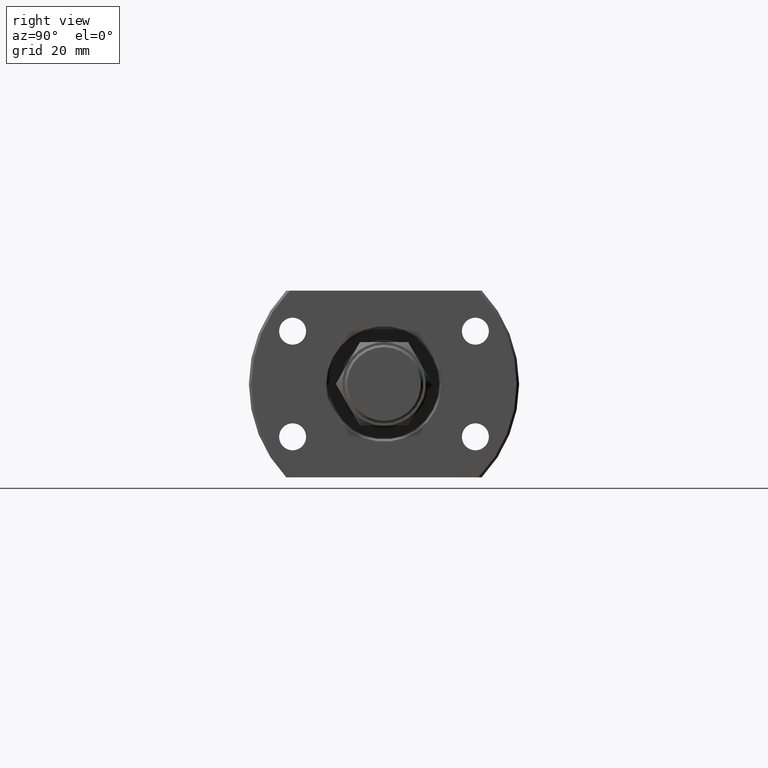
[diagram: clean part render]
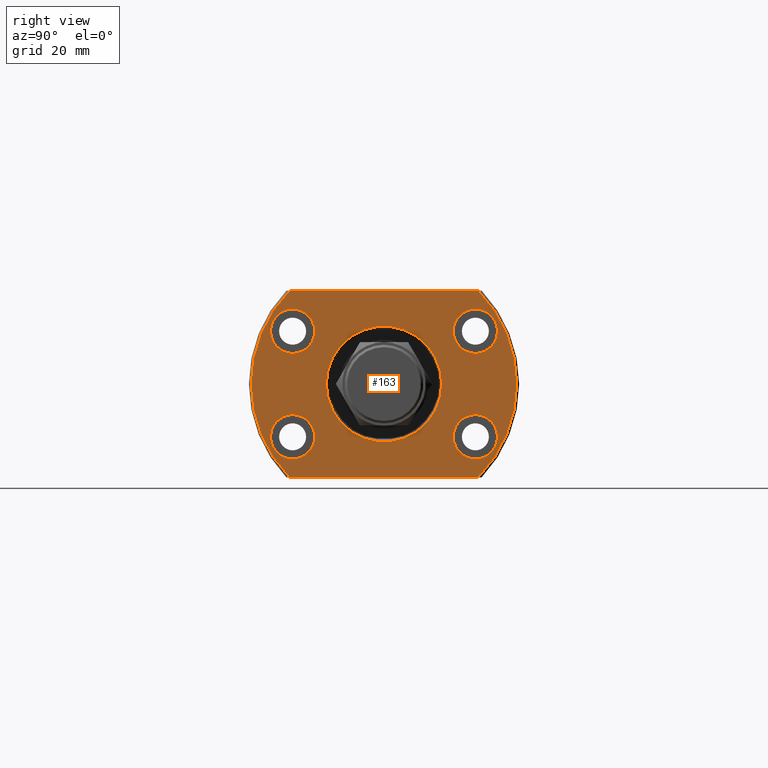
[diagram: same view with one face highlighted and labeled with its STEP entity id]
A machine part, right view. The second image highlights one B-rep face of the part: STEP entity #163.
In plain terms, the highlighted planar face has unit normal (-1, -0, 0).
Its self-contained STEP definition (entity closure, byte-faithful):
#108 = VERTEX_POINT ( 'NONE', #4424 ) ;
#163 = ADVANCED_FACE ( 'NONE', ( #2196, #3327, #1464, #4082, #1732, #4031 ), #1095, .F. ) ;
#269 = CIRCLE ( 'NONE', #2628, 4.500000000000000888 ) ;
#302 = ORIENTED_EDGE ( 'NONE', *, *, #4375, .T. ) ;
#339 = DIRECTION ( 'NONE',  ( 1.000000000000000000, -2.883293662278287419E-14, -3.155443620884046521E-30 ) ) ;
#357 = CIRCLE ( 'NONE', #4456, 11.74999999999932498 ) ;
#379 = VERTEX_POINT ( 'NONE', #1877 ) ;
#421 = DIRECTION ( 'NONE',  ( 2.852656382717415620E-14, 1.000000000000000000, 0.000000000000000000 ) ) ;
#438 = EDGE_LOOP ( 'NONE', ( #3221, #3994 ) ) ;
#484 = ORIENTED_EDGE ( 'NONE', *, *, #2980, .F. ) ;
#489 = AXIS2_PLACEMENT_3D ( 'NONE', #2098, #4417, #4785 ) ;
#491 = CARTESIAN_POINT ( 'NONE',  ( 26.50000000000000355, 2.449293598294708386E-16, 0.000000000000000000 ) ) ;
#526 = ORIENTED_EDGE ( 'NONE', *, *, #4512, .T. ) ;
#585 = EDGE_CURVE ( 'NONE', #108, #2626, #2530, .T. ) ;
#590 = EDGE_CURVE ( 'NONE', #609, #2654, #3882, .T. ) ;
#602 = DIRECTION ( 'NONE',  ( -1.000000000000000000, -9.242617352055502386E-18, 0.000000000000000000 ) ) ;
#608 = VERTEX_POINT ( 'NONE', #642 ) ;
#609 = VERTEX_POINT ( 'NONE', #1002 ) ;
#642 = CARTESIAN_POINT ( 'NONE',  ( 26.50000000000000355, 19.18332609325086580, -19.00000000000001066 ) ) ;
#698 = EDGE_LOOP ( 'NONE', ( #2578, #3248 ) ) ;
#712 = AXIS2_PLACEMENT_3D ( 'NONE', #3647, #3572, #2116 ) ;
#754 = EDGE_LOOP ( 'NONE', ( #484, #526, #302, #4335, #2962 ) ) ;
#785 = CARTESIAN_POINT ( 'NONE',  ( 26.49999999999933564, -23.10000000000076881, -10.75000000000000000 ) ) ;
#797 = CARTESIAN_POINT ( 'NONE',  ( 26.50000000000000355, 11.74999999999861622, 0.000000000000000000 ) ) ;
#798 = CIRCLE ( 'NONE', #3544, 4.500000000000000888 ) ;
#833 = DIRECTION ( 'NONE',  ( 1.000000000000000000, -2.883293662278287419E-14, -3.155443620884046521E-30 ) ) ;
#855 = CARTESIAN_POINT ( 'NONE',  ( 26.50000000000000355, 19.88089535207168623, 19.00000000000001066 ) ) ;
#891 = DIRECTION ( 'NONE',  ( 0.000000000000000000, 1.000000000000000000, 0.000000000000000000 ) ) ;
#913 = AXIS2_PLACEMENT_3D ( 'NONE', #2700, #833, #4501 ) ;
#929 = EDGE_CURVE ( 'NONE', #2654, #609, #1054, .T. ) ;
#937 = EDGE_LOOP ( 'NONE', ( #4816, #1663 ) ) ;
#1002 = CARTESIAN_POINT ( 'NONE',  ( 26.49999999999959499, -14.10000000000076881, 10.75000000000000000 ) ) ;
#1024 = LINE ( 'NONE', #1823, #3541 ) ;
#1026 = CARTESIAN_POINT ( 'NONE',  ( 26.50000000000041211, 14.09999999999923403, -10.75000000000000000 ) ) ;
#1041 = CIRCLE ( 'NONE', #712, 27.00000000000000000 ) ;
#1054 = CIRCLE ( 'NONE', #1672, 4.500000000000000888 ) ;
#1080 = VERTEX_POINT ( 'NONE', #1026 ) ;
#1095 = PLANE ( 'NONE',  #3235 ) ;
#1108 = CARTESIAN_POINT ( 'NONE',  ( 26.50000000000054001, 18.59999999999923403, -10.75000000000000000 ) ) ;
#1149 = CARTESIAN_POINT ( 'NONE',  ( 26.49999999999946354, -18.60000000000076881, -10.75000000000000000 ) ) ;
#1236 = EDGE_CURVE ( 'NONE', #4629, #4254, #3403, .T. ) ;
#1260 = DIRECTION ( 'NONE',  ( 1.000000000000000000, -2.883293662278287419E-14, -3.155443620884046521E-30 ) ) ;
#1356 = EDGE_CURVE ( 'NONE', #608, #3417, #4596, .T. ) ;
#1369 = CARTESIAN_POINT ( 'NONE',  ( 26.50000000000000355, -7.069515144664183387E-13, 0.000000000000000000 ) ) ;
#1394 = DIRECTION ( 'NONE',  ( -9.242617352055502386E-18, 1.000000000000000000, -0.000000000000000000 ) ) ;
#1410 = CARTESIAN_POINT ( 'NONE',  ( 26.50000000000066791, 23.09999999999923403, 10.75000000000000000 ) ) ;
#1414 = DIRECTION ( 'NONE',  ( -1.000000000000000000, -9.242617352055502386E-18, 0.000000000000000000 ) ) ;
#1431 = DIRECTION ( 'NONE',  ( 0.000000000000000000, -1.000000000000000000, 0.000000000000000000 ) ) ;
#1464 = FACE_BOUND ( 'NONE', #698, .T. ) ;
#1469 = ORIENTED_EDGE ( 'NONE', *, *, #2956, .F. ) ;
#1501 = CARTESIAN_POINT ( 'NONE',  ( 26.50000000000066791, 23.09999999999923403, -10.75000000000000000 ) ) ;
#1548 = ORIENTED_EDGE ( 'NONE', *, *, #585, .T. ) ;
#1663 = ORIENTED_EDGE ( 'NONE', *, *, #1973, .F. ) ;
#1672 = AXIS2_PLACEMENT_3D ( 'NONE', #3154, #1710, #3885 ) ;
#1710 = DIRECTION ( 'NONE',  ( 1.000000000000000000, -2.883293662278287419E-14, -3.155443620884046521E-30 ) ) ;
#1732 = FACE_BOUND ( 'NONE', #937, .T. ) ;
#1816 = AXIS2_PLACEMENT_3D ( 'NONE', #2040, #3873, #3146 ) ;
#1823 = CARTESIAN_POINT ( 'NONE',  ( 26.50000000000000355, -27.00000000000000000, -19.00000000000001066 ) ) ;
#1843 = AXIS2_PLACEMENT_3D ( 'NONE', #4855, #2285, #421 ) ;
#1877 = CARTESIAN_POINT ( 'NONE',  ( 26.50000000000000355, -19.18332609325086580, -19.00000000000001066 ) ) ;
#1904 = CARTESIAN_POINT ( 'NONE',  ( 26.49999999999933564, -23.10000000000076881, 10.75000000000000000 ) ) ;
#1918 = ORIENTED_EDGE ( 'NONE', *, *, #3627, .T. ) ;
#1973 = EDGE_CURVE ( 'NONE', #1080, #4676, #269, .T. ) ;
#1999 = CIRCLE ( 'NONE', #1843, 4.500000000000000888 ) ;
#2040 = CARTESIAN_POINT ( 'NONE',  ( 26.50000000000054001, 18.59999999999923403, 10.75000000000000000 ) ) ;
#2098 = CARTESIAN_POINT ( 'NONE',  ( 26.50000000000000355, -7.069515144664183387E-13, 0.000000000000000000 ) ) ;
#2104 = DIRECTION ( 'NONE',  ( 9.242617352055502386E-18, -1.000000000000000000, 0.000000000000000000 ) ) ;
#2116 = DIRECTION ( 'NONE',  ( 0.000000000000000000, 1.000000000000000000, 0.000000000000000000 ) ) ;
#2173 = DIRECTION ( 'NONE',  ( 1.000000000000000000, -2.883293662278287419E-14, -3.155443620884046521E-30 ) ) ;
#2191 = CARTESIAN_POINT ( 'NONE',  ( 26.49999999999946354, -18.60000000000076881, 10.75000000000000000 ) ) ;
#2196 = FACE_BOUND ( 'NONE', #3358, .T. ) ;
#2225 = CARTESIAN_POINT ( 'NONE',  ( 26.49999999999959499, -14.10000000000076881, -10.75000000000000000 ) ) ;
#2268 = DIRECTION ( 'NONE',  ( 2.852656382717415620E-14, 1.000000000000000000, 0.000000000000000000 ) ) ;
#2278 = VERTEX_POINT ( 'NONE', #4554 ) ;
#2285 = DIRECTION ( 'NONE',  ( 1.000000000000000000, -2.886466111666351885E-14, 0.000000000000000000 ) ) ;
#2530 = CIRCLE ( 'NONE', #489, 11.74999999999932498 ) ;
#2552 = ORIENTED_EDGE ( 'NONE', *, *, #1236, .F. ) ;
#2578 = ORIENTED_EDGE ( 'NONE', *, *, #590, .F. ) ;
#2586 = CARTESIAN_POINT ( 'NONE',  ( 26.50000000000000355, -27.00000000000000000, 0.000000000000000000 ) ) ;
#2626 = VERTEX_POINT ( 'NONE', #797 ) ;
#2628 = AXIS2_PLACEMENT_3D ( 'NONE', #4635, #1260, #4241 ) ;
#2641 = DIRECTION ( 'NONE',  ( 1.000000000000000000, -2.883293662278287419E-14, -3.155443620884046521E-30 ) ) ;
#2654 = VERTEX_POINT ( 'NONE', #1904 ) ;
#2700 = CARTESIAN_POINT ( 'NONE',  ( 26.49999999999946354, -18.60000000000076881, -10.75000000000000000 ) ) ;
#2726 = EDGE_CURVE ( 'NONE', #4818, #4600, #1999, .T. ) ;
#2767 = DIRECTION ( 'NONE',  ( -0.000000000000000000, 1.000000000000000000, 0.000000000000000000 ) ) ;
#2956 = EDGE_CURVE ( 'NONE', #4254, #4629, #3988, .T. ) ;
#2962 = ORIENTED_EDGE ( 'NONE', *, *, #1356, .T. ) ;
#2980 = EDGE_CURVE ( 'NONE', #3464, #3417, #3583, .T. ) ;
#3072 = CIRCLE ( 'NONE', #3465, 27.00000000000000000 ) ;
#3097 = EDGE_LOOP ( 'NONE', ( #1469, #2552 ) ) ;
#3146 = DIRECTION ( 'NONE',  ( 2.852656382717415620E-14, 1.000000000000000000, 0.000000000000000000 ) ) ;
#3154 = CARTESIAN_POINT ( 'NONE',  ( 26.49999999999946354, -18.60000000000076881, 10.75000000000000000 ) ) ;
#3221 = ORIENTED_EDGE ( 'NONE', *, *, #4359, .F. ) ;
#3235 = AXIS2_PLACEMENT_3D ( 'NONE', #2586, #602, #2104 ) ;
#3248 = ORIENTED_EDGE ( 'NONE', *, *, #929, .F. ) ;
#3327 = FACE_BOUND ( 'NONE', #438, .T. ) ;
#3358 = EDGE_LOOP ( 'NONE', ( #1918, #1548 ) ) ;
#3403 = CIRCLE ( 'NONE', #4125, 4.500000000000000888 ) ;
#3417 = VERTEX_POINT ( 'NONE', #3880 ) ;
#3464 = VERTEX_POINT ( 'NONE', #4597 ) ;
#3465 = AXIS2_PLACEMENT_3D ( 'NONE', #491, #4660, #891 ) ;
#3541 = VECTOR ( 'NONE', #1394, 1000.000000000000000 ) ;
#3544 = AXIS2_PLACEMENT_3D ( 'NONE', #1108, #339, #4166 ) ;
#3572 = DIRECTION ( 'NONE',  ( 1.000000000000000000, 9.242617352055502386E-18, -0.000000000000000000 ) ) ;
#3583 = LINE ( 'NONE', #855, #3665 ) ;
#3627 = EDGE_CURVE ( 'NONE', #2626, #108, #357, .T. ) ;
#3643 = CARTESIAN_POINT ( 'NONE',  ( 26.50000000000000355, 2.449293598294708386E-16, 0.000000000000000000 ) ) ;
#3647 = CARTESIAN_POINT ( 'NONE',  ( 26.50000000000000355, 2.449293598294708386E-16, 0.000000000000000000 ) ) ;
#3665 = VECTOR ( 'NONE', #2767, 1000.000000000000000 ) ;
#3791 = CIRCLE ( 'NONE', #1816, 4.500000000000000888 ) ;
#3873 = DIRECTION ( 'NONE',  ( 1.000000000000000000, -2.886466111666351885E-14, 0.000000000000000000 ) ) ;
#3880 = CARTESIAN_POINT ( 'NONE',  ( 26.50000000000000355, 19.18332609325086935, 19.00000000000000711 ) ) ;
#3882 = CIRCLE ( 'NONE', #4587, 4.500000000000000888 ) ;
#3885 = DIRECTION ( 'NONE',  ( 2.852656382717415620E-14, 1.000000000000000000, 0.000000000000000000 ) ) ;
#3983 = DIRECTION ( 'NONE',  ( 2.852656382717415620E-14, 1.000000000000000000, 0.000000000000000000 ) ) ;
#3988 = CIRCLE ( 'NONE', #913, 4.500000000000000888 ) ;
#3994 = ORIENTED_EDGE ( 'NONE', *, *, #2726, .F. ) ;
#3999 = DIRECTION ( 'NONE',  ( 1.000000000000000000, 9.242617352055502386E-18, -0.000000000000000000 ) ) ;
#4031 = FACE_OUTER_BOUND ( 'NONE', #754, .T. ) ;
#4069 = EDGE_CURVE ( 'NONE', #379, #608, #1024, .T. ) ;
#4082 = FACE_BOUND ( 'NONE', #3097, .T. ) ;
#4125 = AXIS2_PLACEMENT_3D ( 'NONE', #1149, #2641, #2268 ) ;
#4166 = DIRECTION ( 'NONE',  ( 2.852656382717415620E-14, 1.000000000000000000, 0.000000000000000000 ) ) ;
#4203 = CARTESIAN_POINT ( 'NONE',  ( 26.50000000000041211, 14.09999999999923403, 10.75000000000000000 ) ) ;
#4241 = DIRECTION ( 'NONE',  ( 2.852656382717415620E-14, 1.000000000000000000, 0.000000000000000000 ) ) ;
#4254 = VERTEX_POINT ( 'NONE', #2225 ) ;
#4335 = ORIENTED_EDGE ( 'NONE', *, *, #4069, .T. ) ;
#4359 = EDGE_CURVE ( 'NONE', #4600, #4818, #3791, .T. ) ;
#4375 = EDGE_CURVE ( 'NONE', #2278, #379, #3072, .T. ) ;
#4417 = DIRECTION ( 'NONE',  ( -1.000000000000000000, -9.242617352055502386E-18, 0.000000000000000000 ) ) ;
#4424 = CARTESIAN_POINT ( 'NONE',  ( 26.50000000000000355, -11.75000000000071054, 1.438959988998140752E-15 ) ) ;
#4456 = AXIS2_PLACEMENT_3D ( 'NONE', #1369, #1414, #1431 ) ;
#4501 = DIRECTION ( 'NONE',  ( 2.852656382717415620E-14, 1.000000000000000000, 0.000000000000000000 ) ) ;
#4512 = EDGE_CURVE ( 'NONE', #3464, #2278, #1041, .T. ) ;
#4554 = CARTESIAN_POINT ( 'NONE',  ( 26.50000000000000355, -27.00000000000000355, 0.000000000000000000 ) ) ;
#4587 = AXIS2_PLACEMENT_3D ( 'NONE', #2191, #2173, #3983 ) ;
#4596 = CIRCLE ( 'NONE', #4824, 27.00000000000000000 ) ;
#4597 = CARTESIAN_POINT ( 'NONE',  ( 26.50000000000000355, -19.18332609325086224, 19.00000000000000711 ) ) ;
#4600 = VERTEX_POINT ( 'NONE', #1410 ) ;
#4602 = EDGE_CURVE ( 'NONE', #4676, #1080, #798, .T. ) ;
#4629 = VERTEX_POINT ( 'NONE', #785 ) ;
#4635 = CARTESIAN_POINT ( 'NONE',  ( 26.50000000000054001, 18.59999999999923403, -10.75000000000000000 ) ) ;
#4660 = DIRECTION ( 'NONE',  ( 1.000000000000000000, 9.242617352055502386E-18, -0.000000000000000000 ) ) ;
#4676 = VERTEX_POINT ( 'NONE', #1501 ) ;
#4730 = DIRECTION ( 'NONE',  ( 0.000000000000000000, 1.000000000000000000, 0.000000000000000000 ) ) ;
#4785 = DIRECTION ( 'NONE',  ( 0.000000000000000000, -1.000000000000000000, 0.000000000000000000 ) ) ;
#4816 = ORIENTED_EDGE ( 'NONE', *, *, #4602, .F. ) ;
#4818 = VERTEX_POINT ( 'NONE', #4203 ) ;
#4824 = AXIS2_PLACEMENT_3D ( 'NONE', #3643, #3999, #4730 ) ;
#4855 = CARTESIAN_POINT ( 'NONE',  ( 26.50000000000054001, 18.59999999999923403, 10.75000000000000000 ) ) ;